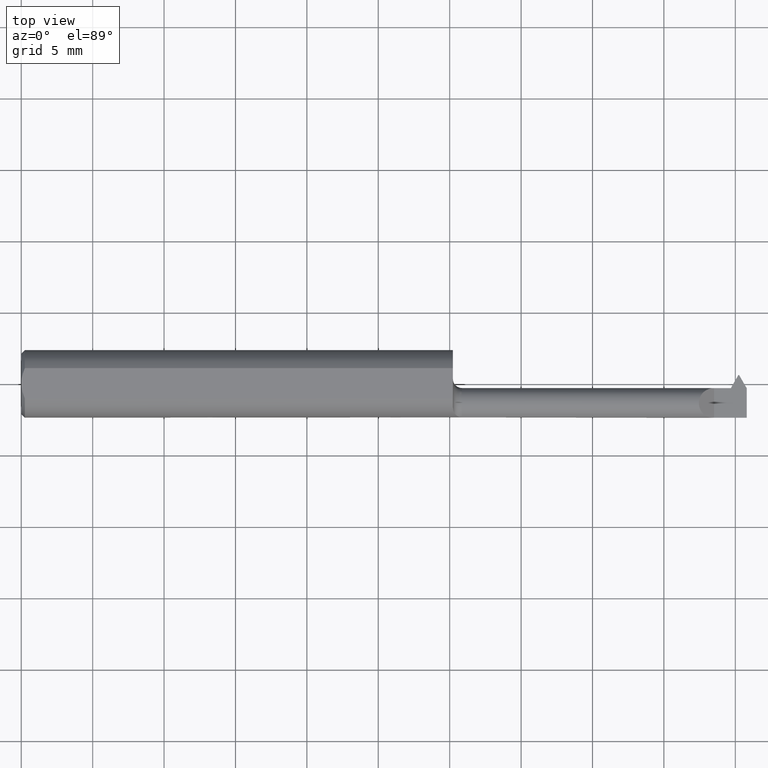
[diagram: clean part render]
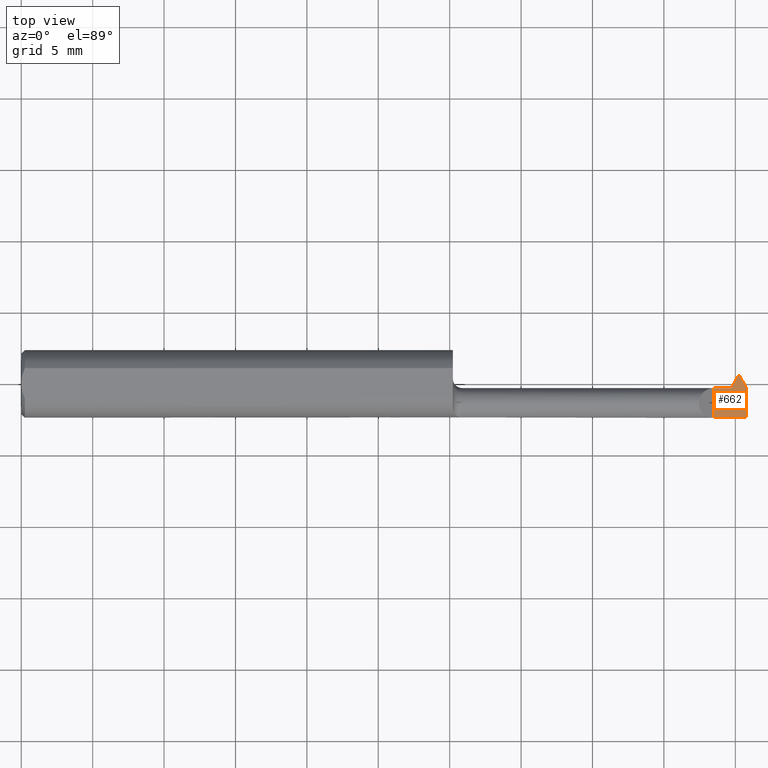
[diagram: same view with one face highlighted and labeled with its STEP entity id]
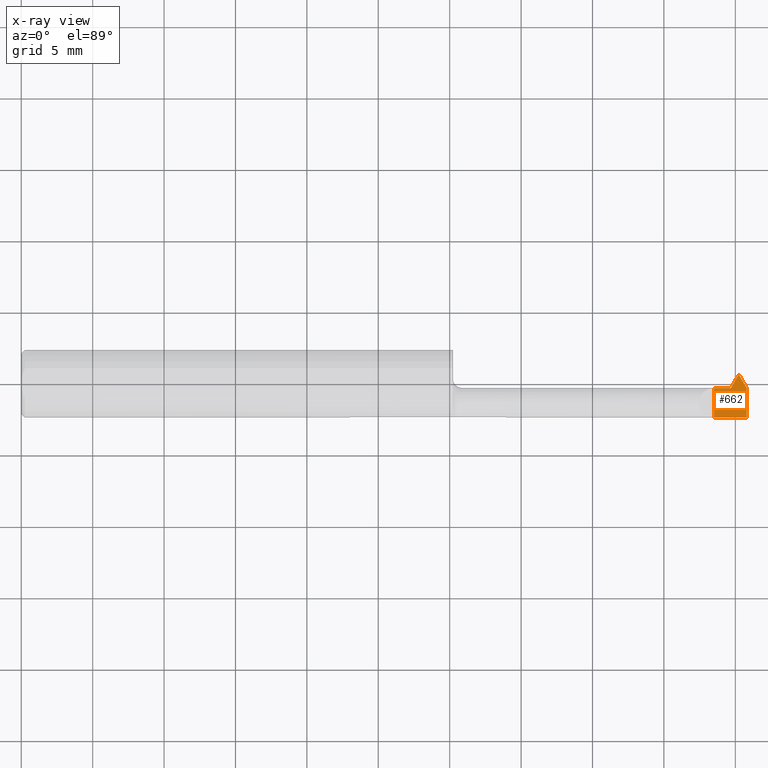
[diagram: x-ray of the same camera — body ghosted, the highlighted face saturated]
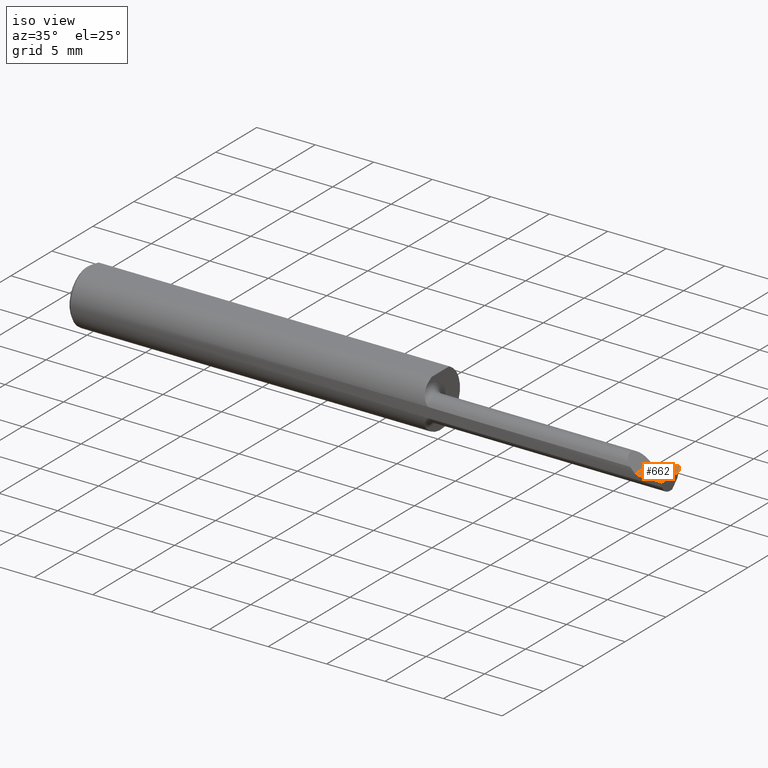
[diagram: same view with one face highlighted and labeled with its STEP entity id]
A machine part, top view. The second image highlights one B-rep face of the part: STEP entity #662.
The next image is the same camera in x-ray: the body ghosted, the highlighted face saturated — about 0% of this face is hidden behind the body in this view.
A second angle (iso view) of the same face is appended — the face is thin or edge-on in the first view.
In plain terms, the highlighted planar face has unit normal (-0, 0, -1).
Its self-contained STEP definition (entity closure, byte-faithful):
#1 = EDGE_CURVE ( 'NONE', #104, #695, #746, .T. ) ;
#2 = CARTESIAN_POINT ( 'NONE',  ( 1.956215390309173685, -0.01159999999999999747, 0.000000000000000000 ) ) ;
#10 = CARTESIAN_POINT ( 'NONE',  ( 1.979000000000000092, 0.02439999999999998420, 0.000000000000000000 ) ) ;
#16 = ORIENTED_EDGE ( 'NONE', *, *, #471, .F. ) ;
#17 = FACE_OUTER_BOUND ( 'NONE', #648, .T. ) ;
#25 = VECTOR ( 'NONE', #302, 39.37007874015748143 ) ;
#33 = CARTESIAN_POINT ( 'NONE',  ( 2.999519565323725069E-32, -0.09359999999999998876, 2.449293598294709866E-16 ) ) ;
#65 = EDGE_CURVE ( 'NONE', #632, #285, #313, .T. ) ;
#74 = DIRECTION ( 'NONE',  ( -0.000000000000000000, 1.000000000000000000, -0.000000000000000000 ) ) ;
#77 = CARTESIAN_POINT ( 'NONE',  ( 1.189999999999999947, 0.02439999999999992522, 9.919639073093575991E-17 ) ) ;
#81 = LINE ( 'NONE', #762, #721 ) ;
#92 = VECTOR ( 'NONE', #570, 39.37007874015748143 ) ;
#104 = VERTEX_POINT ( 'NONE', #2 ) ;
#123 = EDGE_CURVE ( 'NONE', #460, #632, #81, .T. ) ;
#147 = CARTESIAN_POINT ( 'NONE',  ( 2.000000000000000000, -0.2500000000000000555, 0.000000000000000000 ) ) ;
#161 = DIRECTION ( 'NONE',  ( 0.000000000000000000, -1.000000000000000000, 0.000000000000000000 ) ) ;
#171 = ORIENTED_EDGE ( 'NONE', *, *, #734, .F. ) ;
#178 = CARTESIAN_POINT ( 'NONE',  ( 1.956215390309173685, -0.01159999999999999747, 0.000000000000000000 ) ) ;
#186 = VERTEX_POINT ( 'NONE', #213 ) ;
#197 = DIRECTION ( 'NONE',  ( -1.224646799147355426E-16, 0.000000000000000000, -1.000000000000000000 ) ) ;
#213 = CARTESIAN_POINT ( 'NONE',  ( 2.000000000000000000, -0.09360000000000001652, 0.000000000000000000 ) ) ;
#219 = LINE ( 'NONE', #397, #565 ) ;
#229 = VECTOR ( 'NONE', #363, 39.37007874015748143 ) ;
#232 = LINE ( 'NONE', #557, #229 ) ;
#237 = LINE ( 'NONE', #178, #25 ) ;
#243 = ORIENTED_EDGE ( 'NONE', *, *, #335, .F. ) ;
#261 = CARTESIAN_POINT ( 'NONE',  ( 2.000000000000000000, -0.01197306695894668517, 0.000000000000000000 ) ) ;
#263 = PLANE ( 'NONE',  #399 ) ;
#266 = VERTEX_POINT ( 'NONE', #261 ) ;
#268 = CARTESIAN_POINT ( 'NONE',  ( 1.910000000000000142, -0.01159999999999999747, 9.919639073093575991E-17 ) ) ;
#285 = VERTEX_POINT ( 'NONE', #338 ) ;
#302 = DIRECTION ( 'NONE',  ( 1.000000000000000000, -7.825606231850196397E-15, -0.000000000000000000 ) ) ;
#313 = LINE ( 'NONE', #608, #616 ) ;
#335 = EDGE_CURVE ( 'NONE', #186, #460, #532, .T. ) ;
#338 = CARTESIAN_POINT ( 'NONE',  ( 1.947215390309172900, -0.01159999999999992634, 0.000000000000000000 ) ) ;
#342 = ORIENTED_EDGE ( 'NONE', *, *, #65, .F. ) ;
#361 = ORIENTED_EDGE ( 'NONE', *, *, #1, .F. ) ;
#363 = DIRECTION ( 'NONE',  ( 0.4999999999999948375, -0.8660254037844417052, 0.000000000000000000 ) ) ;
#391 = DIRECTION ( 'NONE',  ( -1.000000000000000000, 0.000000000000000000, 1.224646799147355426E-16 ) ) ;
#397 = CARTESIAN_POINT ( 'NONE',  ( 2.000000000000000000, 0.000000000000000000, 0.000000000000000000 ) ) ;
#399 = AXIS2_PLACEMENT_3D ( 'NONE', #147, #197, #391 ) ;
#422 = DIRECTION ( 'NONE',  ( 1.000000000000000000, 5.600139467623446789E-17, 0.000000000000000000 ) ) ;
#460 = VERTEX_POINT ( 'NONE', #677 ) ;
#464 = CARTESIAN_POINT ( 'NONE',  ( 1.976999999999999869, 0.02439999999999998420, 0.000000000000000000 ) ) ;
#471 = EDGE_CURVE ( 'NONE', #583, #266, #232, .T. ) ;
#498 = EDGE_CURVE ( 'NONE', #285, #104, #237, .T. ) ;
#510 = VECTOR ( 'NONE', #589, 39.37007874015748143 ) ;
#521 = ORIENTED_EDGE ( 'NONE', *, *, #123, .F. ) ;
#532 = LINE ( 'NONE', #33, #510 ) ;
#553 = DIRECTION ( 'NONE',  ( 0.4999999999999965583, 0.8660254037844405950, -0.000000000000000000 ) ) ;
#557 = CARTESIAN_POINT ( 'NONE',  ( 1.979000000000000092, 0.02439999999999998420, 0.000000000000000000 ) ) ;
#565 = VECTOR ( 'NONE', #161, 39.37007874015748143 ) ;
#570 = DIRECTION ( 'NONE',  ( 1.000000000000000000, 5.600139467623446789E-17, 0.000000000000000000 ) ) ;
#579 = EDGE_CURVE ( 'NONE', #695, #583, #702, .T. ) ;
#583 = VERTEX_POINT ( 'NONE', #10 ) ;
#589 = DIRECTION ( 'NONE',  ( -1.000000000000000000, -0.000000000000000000, -0.000000000000000000 ) ) ;
#608 = CARTESIAN_POINT ( 'NONE',  ( 1.189999999999999947, -0.01160000000000003736, 9.919639073093575991E-17 ) ) ;
#616 = VECTOR ( 'NONE', #422, 39.37007874015748143 ) ;
#632 = VERTEX_POINT ( 'NONE', #268 ) ;
#648 = EDGE_LOOP ( 'NONE', ( #708, #361, #778, #342, #521, #243, #171, #16 ) ) ;
#662 = ADVANCED_FACE ( 'NONE', ( #17 ), #263, .F. ) ;
#677 = CARTESIAN_POINT ( 'NONE',  ( 1.910000000000000142, -0.09360000000000005815, 1.102182119232617911E-17 ) ) ;
#695 = VERTEX_POINT ( 'NONE', #464 ) ;
#702 = LINE ( 'NONE', #77, #92 ) ;
#708 = ORIENTED_EDGE ( 'NONE', *, *, #579, .F. ) ;
#721 = VECTOR ( 'NONE', #74, 39.37007874015748143 ) ;
#734 = EDGE_CURVE ( 'NONE', #266, #186, #219, .T. ) ;
#738 = CARTESIAN_POINT ( 'NONE',  ( 1.976999999999999869, 0.02439999999999998420, 0.000000000000000000 ) ) ;
#746 = LINE ( 'NONE', #738, #794 ) ;
#762 = CARTESIAN_POINT ( 'NONE',  ( 1.910000000000000142, -0.2500000000000000555, 1.102182119232617911E-17 ) ) ;
#778 = ORIENTED_EDGE ( 'NONE', *, *, #498, .F. ) ;
#794 = VECTOR ( 'NONE', #553, 39.37007874015748143 ) ;